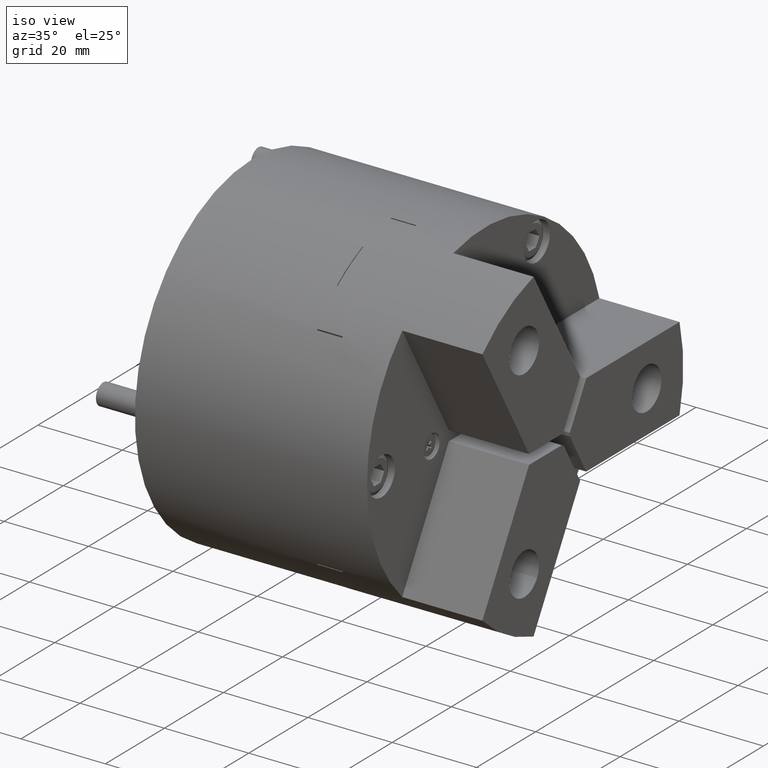
[diagram: clean part render]
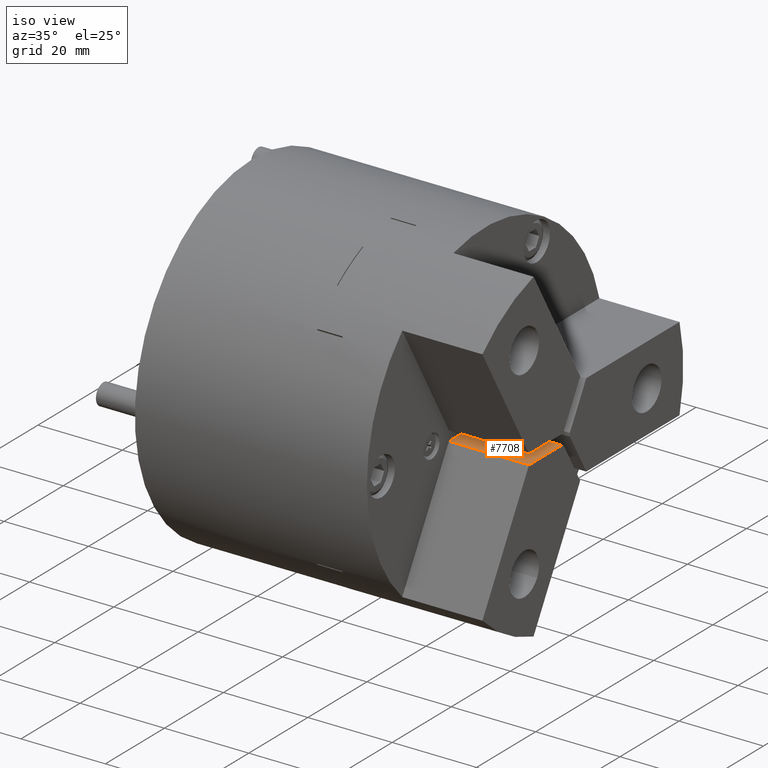
[diagram: same view with one face highlighted and labeled with its STEP entity id]
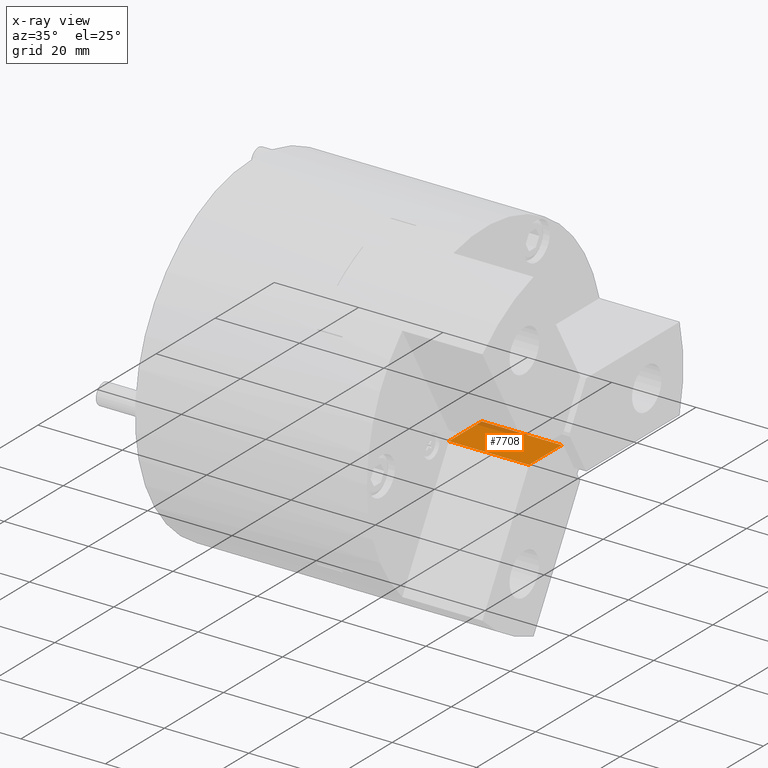
[diagram: x-ray of the same camera — body ghosted, the highlighted face saturated]
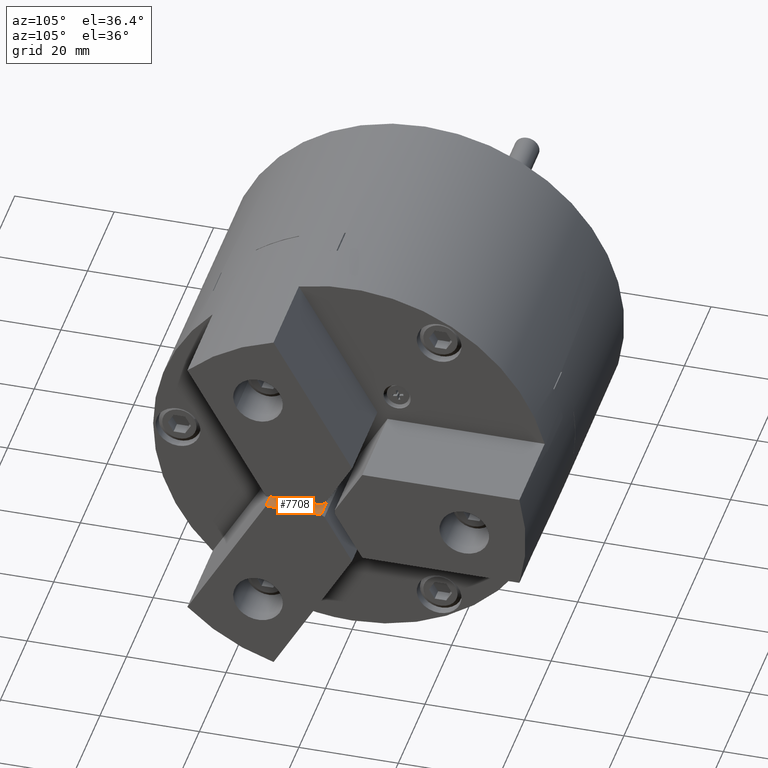
[diagram: same view with one face highlighted and labeled with its STEP entity id]
A machine part, iso view. The second image highlights one B-rep face of the part: STEP entity #7708.
The next image is the same camera in x-ray: the body ghosted, the highlighted face saturated — about 9% of this face is hidden behind the body in this view.
A second angle (auxiliary view) of the same face is appended — the face is thin or edge-on in the first view.
In plain terms, the highlighted planar face has unit normal (-0, 0, -1).
Its self-contained STEP definition (entity closure, byte-faithful):
#610=ORIENTED_EDGE('',*,*,#2691,.T.);
#611=ORIENTED_EDGE('',*,*,#2663,.F.);
#612=ORIENTED_EDGE('',*,*,#2664,.F.);
#613=ORIENTED_EDGE('',*,*,#2688,.T.);
#2663=EDGE_CURVE('',#3710,#3706,#4481,.T.);
#2664=EDGE_CURVE('',#3711,#3710,#4482,.T.);
#2688=EDGE_CURVE('',#3711,#3730,#4497,.T.);
#2691=EDGE_CURVE('',#3730,#3706,#4500,.T.);
#3706=VERTEX_POINT('',#11436);
#3710=VERTEX_POINT('',#11443);
#3711=VERTEX_POINT('',#11447);
#3730=VERTEX_POINT('',#11494);
#4481=LINE('',#11444,#5177);
#4482=LINE('',#11446,#5178);
#4497=LINE('',#11495,#5193);
#4500=LINE('',#11500,#5196);
#5177=VECTOR('',#9081,1000.);
#5178=VECTOR('',#9084,1000.);
#5193=VECTOR('',#9127,1000.);
#5196=VECTOR('',#9134,1000.);
#5878=EDGE_LOOP('',(#610,#611,#612,#613));
#6617=FACE_BOUND('',#5878,.T.);
#7363=PLANE('',#8259);
#7708=ADVANCED_FACE('',(#6617),#7363,.F.);
#8259=AXIS2_PLACEMENT_3D('',#11499,#9132,#9133);
#9081=DIRECTION('',(-1.,-3.11476634061399E-16,2.75979252840801E-16));
#9084=DIRECTION('',(3.11476634061396E-16,-1.,-1.08246744900953E-14));
#9127=DIRECTION('',(-1.,-3.11476634061399E-16,2.75979252840801E-16));
#9132=DIRECTION('',(-2.75979252840804E-16,1.0769163338864E-14,-1.));
#9133=DIRECTION('',(-3.11476634061396E-16,1.,1.0769163338864E-14));
#9134=DIRECTION('',(3.11476634061396E-16,-1.,-1.08246744900953E-14));
#11436=CARTESIAN_POINT('',(1.67393820377561E-14,-12.2316511756223,-1.18584129663757));
#11443=CARTESIAN_POINT('',(19.,-12.2316511756223,-1.18584129663758));
#11444=CARTESIAN_POINT('',(19.,-12.2316511756223,-1.18584129663758));
#11446=CARTESIAN_POINT('',(19.,-12.2316511756223,-1.18584129663758));
#11447=CARTESIAN_POINT('',(19.,-1.14652600718148,-1.18584129663746));
#11494=CARTESIAN_POINT('',(1.32866245621408E-14,-1.14652600718149,-1.18584129663745));
#11495=CARTESIAN_POINT('',(19.,-1.14652600718148,-1.18584129663746));
#11499=CARTESIAN_POINT('',(19.,-12.2316511756223,-1.18584129663758));
#11500=CARTESIAN_POINT('',(1.67393820377561E-14,-12.2316511756223,-1.18584129663757));